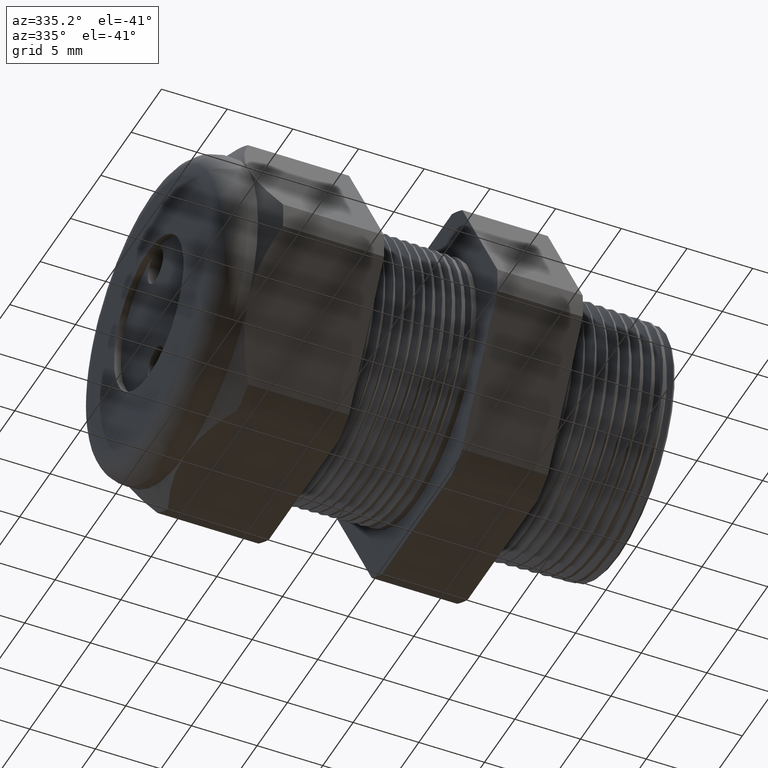
[diagram: clean part render]
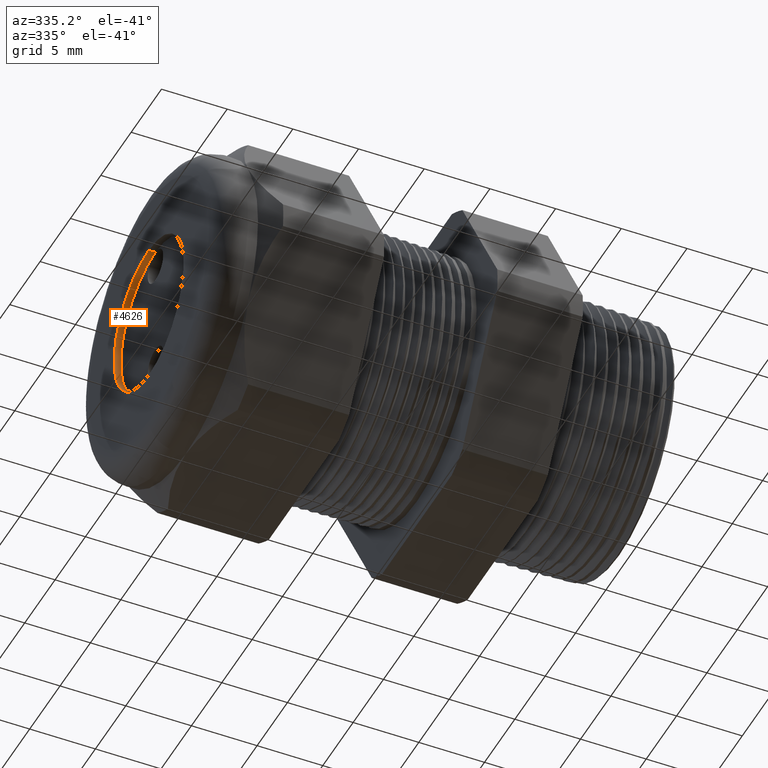
[diagram: same view with one face highlighted and labeled with its STEP entity id]
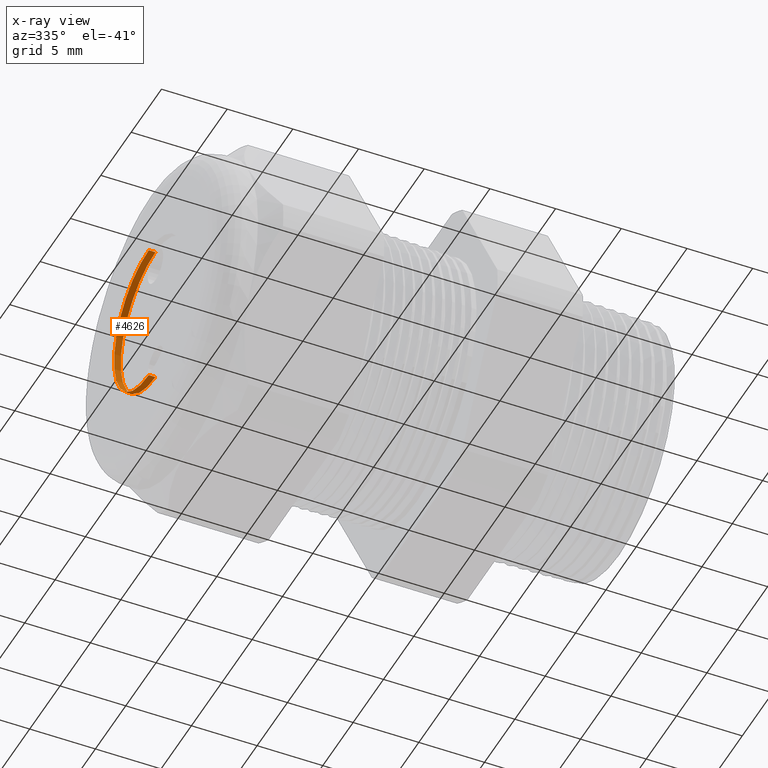
[diagram: x-ray of the same camera — body ghosted, the highlighted face saturated]
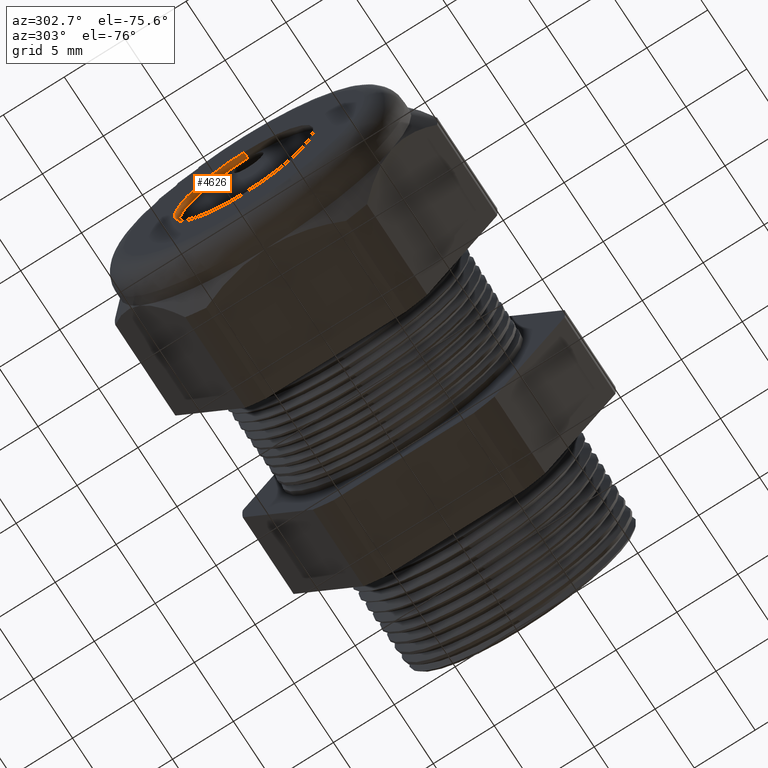
[diagram: same view with one face highlighted and labeled with its STEP entity id]
A machine part, auxiliary view. The second image highlights one B-rep face of the part: STEP entity #4626.
The next image is the same camera in x-ray: the body ghosted, the highlighted face saturated — about 0% of this face is hidden behind the body in this view.
A second angle (auxiliary view) of the same face is appended — the face is thin or edge-on in the first view.
In plain terms, the highlighted cylindrical surface (partial cylindrical patch) has radius 5.715 mm, axis along (-1, 0, 0).
Its self-contained STEP definition (entity closure, byte-faithful):
#135 = EDGE_CURVE ( 'NONE', #153, #146, #1430, .T. ) ;
#142 = EDGE_CURVE ( 'NONE', #156, #152, #1418, .T. ) ;
#146 = VERTEX_POINT ( 'NONE', #1404 ) ;
#152 = VERTEX_POINT ( 'NONE', #1459 ) ;
#153 = VERTEX_POINT ( 'NONE', #1454 ) ;
#156 = VERTEX_POINT ( 'NONE', #1453 ) ;
#1404 = CARTESIAN_POINT ( 'NONE',  ( -1.370000000000000100, 0.0000000000000000000, 0.2249999999999999800 ) ) ;
#1415 = DIRECTION ( 'NONE',  ( -1.000000000000000000, 0.0000000000000000000, 0.0000000000000000000 ) ) ;
#1416 = VECTOR ( 'NONE', #1415, 39.37007874015748100 ) ;
#1417 = CARTESIAN_POINT ( 'NONE',  ( -1.350000000000000100, 2.755455298081544500E-017, -0.2249999999999999800 ) ) ;
#1418 = LINE ( 'NONE', #1417, #1416 ) ;
#1427 = DIRECTION ( 'NONE',  ( -1.000000000000000000, 0.0000000000000000000, 0.0000000000000000000 ) ) ;
#1428 = VECTOR ( 'NONE', #1427, 39.37007874015748100 ) ;
#1429 = CARTESIAN_POINT ( 'NONE',  ( -1.350000000000000100, 0.0000000000000000000, 0.2249999999999999800 ) ) ;
#1430 = LINE ( 'NONE', #1429, #1428 ) ;
#1453 = CARTESIAN_POINT ( 'NONE',  ( -1.350000000000000100, 2.755455298081544500E-017, -0.2249999999999999800 ) ) ;
#1454 = CARTESIAN_POINT ( 'NONE',  ( -1.350000000000000100, 0.0000000000000000000, 0.2249999999999999800 ) ) ;
#1459 = CARTESIAN_POINT ( 'NONE',  ( -1.370000000000000100, 2.755455298081544500E-017, -0.2249999999999999800 ) ) ;
#3682 = CARTESIAN_POINT ( 'NONE',  ( -1.350000000000000100, 0.0000000000000000000, 0.0000000000000000000 ) ) ;
#3683 = AXIS2_PLACEMENT_3D ( 'NONE', #3682, #3747, #3746 ) ;
#3684 = CIRCLE ( 'NONE', #3683, 0.2249999999999999800 ) ;
#3722 = DIRECTION ( 'NONE',  ( 0.0000000000000000000, 0.0000000000000000000, 1.000000000000000000 ) ) ;
#3723 = DIRECTION ( 'NONE',  ( -1.000000000000000000, 0.0000000000000000000, 0.0000000000000000000 ) ) ;
#3724 = AXIS2_PLACEMENT_3D ( 'NONE', #3730, #3723, #3722 ) ;
#3725 = CIRCLE ( 'NONE', #3724, 0.2249999999999999800 ) ;
#3726 = DIRECTION ( 'NONE',  ( 0.0000000000000000000, 0.0000000000000000000, 1.000000000000000000 ) ) ;
#3727 = DIRECTION ( 'NONE',  ( -1.000000000000000000, 0.0000000000000000000, 0.0000000000000000000 ) ) ;
#3728 = CARTESIAN_POINT ( 'NONE',  ( -1.350000000000000100, 0.0000000000000000000, 0.0000000000000000000 ) ) ;
#3729 = AXIS2_PLACEMENT_3D ( 'NONE', #3728, #3727, #3726 ) ;
#3730 = CARTESIAN_POINT ( 'NONE',  ( -1.370000000000000100, 0.0000000000000000000, 0.0000000000000000000 ) ) ;
#3731 = CYLINDRICAL_SURFACE ( 'NONE', #3729, 0.2249999999999999800 ) ;
#3732 = FACE_OUTER_BOUND ( 'NONE', #4622, .T. ) ;
#3746 = DIRECTION ( 'NONE',  ( 0.0000000000000000000, 0.0000000000000000000, 1.000000000000000000 ) ) ;
#3747 = DIRECTION ( 'NONE',  ( -1.000000000000000000, 0.0000000000000000000, 0.0000000000000000000 ) ) ;
#4614 = ORIENTED_EDGE ( 'NONE', *, *, #135, .T. ) ;
#4615 = EDGE_CURVE ( 'NONE', #153, #156, #3684, .T. ) ;
#4618 = ORIENTED_EDGE ( 'NONE', *, *, #4615, .F. ) ;
#4619 = ORIENTED_EDGE ( 'NONE', *, *, #142, .F. ) ;
#4620 = ORIENTED_EDGE ( 'NONE', *, *, #4635, .T. ) ;
#4622 = EDGE_LOOP ( 'NONE', ( #4619, #4618, #4614, #4620 ) ) ;
#4626 = ADVANCED_FACE ( 'NONE', ( #3732 ), #3731, .F. ) ;
#4635 = EDGE_CURVE ( 'NONE', #146, #152, #3725, .T. ) ;